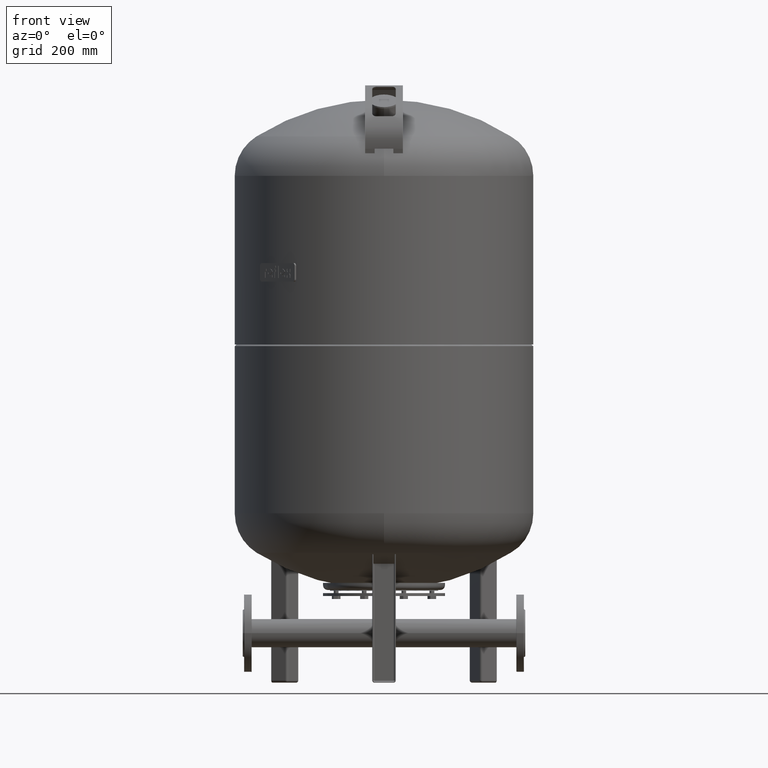
[diagram: clean part render]
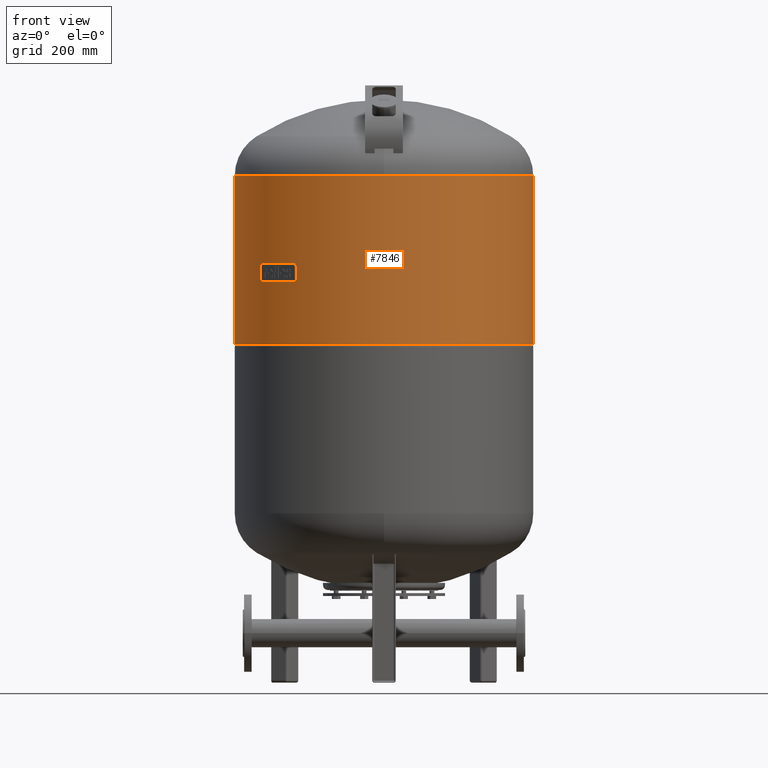
[diagram: same view with one face highlighted and labeled with its STEP entity id]
A machine part, front view. The second image highlights one B-rep face of the part: STEP entity #7846.
In plain terms, the highlighted cylindrical surface (partial cylindrical patch) has radius 317 mm, axis along (0, 0, 1).
Its self-contained STEP definition (entity closure, byte-faithful):
#7805=CARTESIAN_POINT('',(8.343982E-015,0.0,897.0));
#7806=DIRECTION('',(4.661443E-017,0.0,1.0));
#7807=DIRECTION('',(1.0,0.0,0.0));
#7808=AXIS2_PLACEMENT_3D('',#7805,#7806,#7807);
#7809=CYLINDRICAL_SURFACE('',#7808,317.0);
#7810=CARTESIAN_POINT('',(317.0,0.0,1076.0));
#7811=VERTEX_POINT('',#7810);
#7812=CARTESIAN_POINT('',(316.999999999999940,0.0,718.0));
#7813=VERTEX_POINT('',#7812);
#7814=CARTESIAN_POINT('',(317.0,0.0,1076.0));
#7815=DIRECTION('',(0.0,0.0,-1.0));
#7816=VECTOR('',#7815,358.0);
#7817=LINE('',#7814,#7816);
#7818=EDGE_CURVE('',#7811,#7813,#7817,.T.);
#7819=ORIENTED_EDGE('',*,*,#7818,.F.);
#7820=CARTESIAN_POINT('',(-317.0,-3.882002E-014,1076.0));
#7821=VERTEX_POINT('',#7820);
#7822=CARTESIAN_POINT('',(1.668796E-014,0.0,1076.0));
#7823=DIRECTION('',(0.0,0.0,1.0));
#7824=DIRECTION('',(1.0,0.0,0.0));
#7825=AXIS2_PLACEMENT_3D('',#7822,#7823,#7824);
#7826=CIRCLE('',#7825,317.0);
#7827=EDGE_CURVE('',#7821,#7811,#7826,.T.);
#7828=ORIENTED_EDGE('',*,*,#7827,.F.);
#7829=CARTESIAN_POINT('',(-317.0,-3.882002E-014,718.0));
#7830=VERTEX_POINT('',#7829);
#7831=CARTESIAN_POINT('',(-317.0,-3.882002E-014,1076.0));
#7832=DIRECTION('',(0.0,0.0,-1.0));
#7833=VECTOR('',#7832,358.0);
#7834=LINE('',#7831,#7833);
#7835=EDGE_CURVE('',#7821,#7830,#7834,.T.);
#7836=ORIENTED_EDGE('',*,*,#7835,.T.);
#7837=CARTESIAN_POINT('',(0.0,0.0,718.0));
#7838=DIRECTION('',(0.0,0.0,1.0));
#7839=DIRECTION('',(1.0,0.0,0.0));
#7840=AXIS2_PLACEMENT_3D('',#7837,#7838,#7839);
#7841=CIRCLE('',#7840,316.999999999999940);
#7842=EDGE_CURVE('',#7830,#7813,#7841,.T.);
#7843=ORIENTED_EDGE('',*,*,#7842,.T.);
#7844=EDGE_LOOP('',(#7819,#7828,#7836,#7843));
#7845=FACE_OUTER_BOUND('',#7844,.T.);
#7846=ADVANCED_FACE('',(#7845),#7809,.T.);